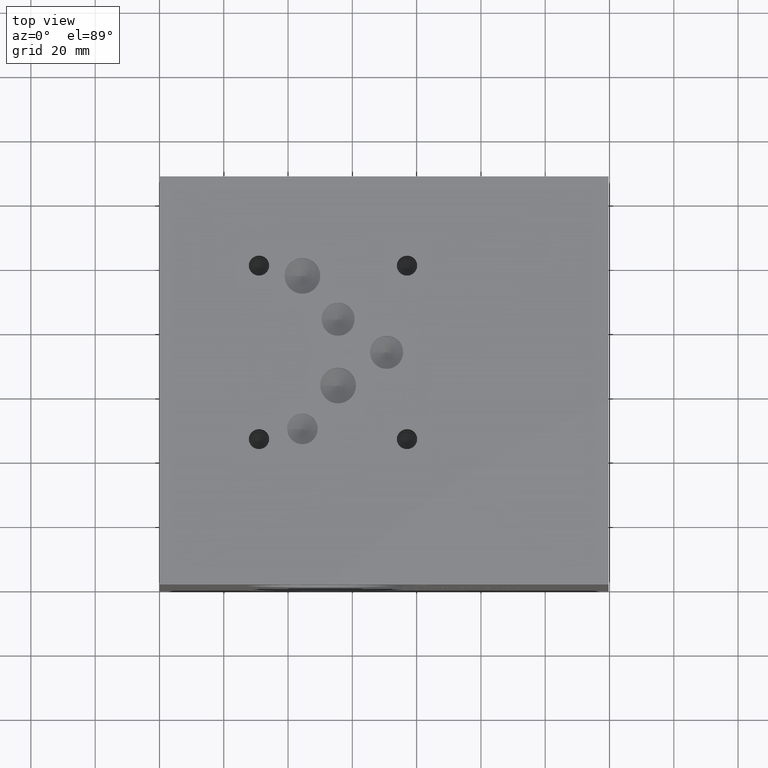
[diagram: clean part render]
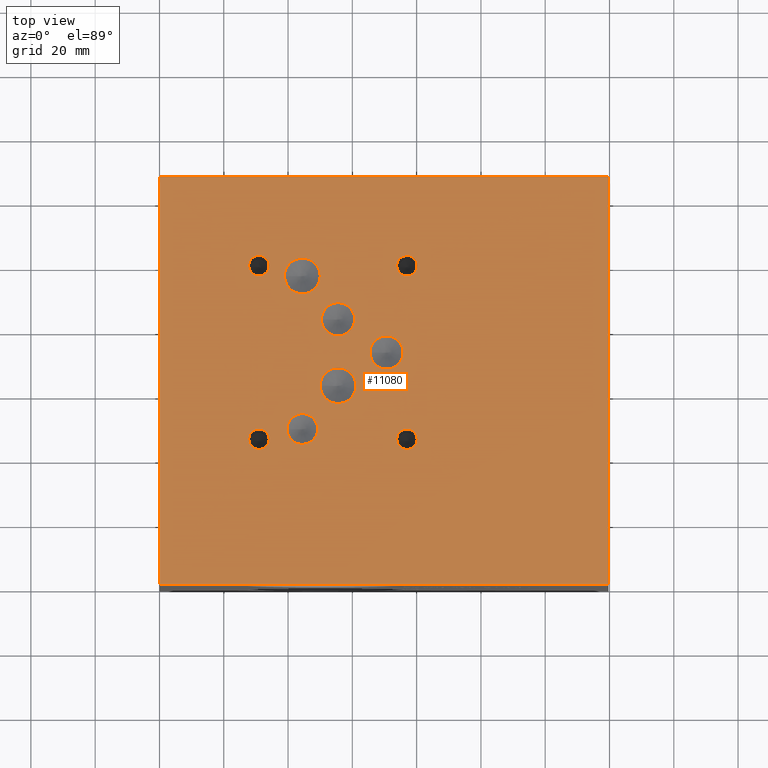
[diagram: same view with one face highlighted and labeled with its STEP entity id]
A machine part, top view. The second image highlights one B-rep face of the part: STEP entity #11080.
In plain terms, the highlighted planar face has unit normal (0, 0, 1).
Its self-contained STEP definition (entity closure, byte-faithful):
#162=CIRCLE('',#11448,4.7625);
#163=CIRCLE('',#11449,4.7625);
#166=CIRCLE('',#11454,5.5626);
#167=CIRCLE('',#11455,5.5626);
#170=CIRCLE('',#11460,5.5626);
#171=CIRCLE('',#11461,5.5626);
#174=CIRCLE('',#11466,5.1562);
#175=CIRCLE('',#11467,5.1562);
#178=CIRCLE('',#11472,5.1562);
#179=CIRCLE('',#11473,5.1562);
#185=CIRCLE('',#11482,3.175);
#186=CIRCLE('',#11483,3.175);
#192=CIRCLE('',#11493,3.175);
#193=CIRCLE('',#11494,3.175);
#199=CIRCLE('',#11504,3.175);
#200=CIRCLE('',#11505,3.175);
#206=CIRCLE('',#11515,3.175);
#207=CIRCLE('',#11516,3.175);
#400=FACE_BOUND('',#2060,.T.);
#401=FACE_BOUND('',#2061,.T.);
#402=FACE_BOUND('',#2062,.T.);
#403=FACE_BOUND('',#2063,.T.);
#404=FACE_BOUND('',#2064,.T.);
#405=FACE_BOUND('',#2065,.T.);
#406=FACE_BOUND('',#2066,.T.);
#407=FACE_BOUND('',#2067,.T.);
#408=FACE_BOUND('',#2068,.T.);
#1420=FACE_OUTER_BOUND('',#2059,.T.);
#2059=EDGE_LOOP('',(#9740,#9741,#9742,#9743));
#2060=EDGE_LOOP('',(#9744,#9745));
#2061=EDGE_LOOP('',(#9746,#9747));
#2062=EDGE_LOOP('',(#9748,#9749));
#2063=EDGE_LOOP('',(#9750,#9751));
#2064=EDGE_LOOP('',(#9752,#9753));
#2065=EDGE_LOOP('',(#9754,#9755));
#2066=EDGE_LOOP('',(#9756,#9757));
#2067=EDGE_LOOP('',(#9758,#9759));
#2068=EDGE_LOOP('',(#9760,#9761));
#2410=LINE('',#16593,#3434);
#2900=LINE('',#18114,#3924);
#2943=LINE('',#18351,#3967);
#3093=LINE('',#19096,#4117);
#3434=VECTOR('',#12251,10.);
#3924=VECTOR('',#13099,10.);
#3967=VECTOR('',#13176,10.);
#4117=VECTOR('',#14018,10.);
#4492=VERTEX_POINT('',#16590);
#4493=VERTEX_POINT('',#16592);
#4865=VERTEX_POINT('',#18113);
#4914=VERTEX_POINT('',#18349);
#4976=VERTEX_POINT('',#18534);
#4977=VERTEX_POINT('',#18535);
#4981=VERTEX_POINT('',#18547);
#4982=VERTEX_POINT('',#18548);
#4986=VERTEX_POINT('',#18560);
#4987=VERTEX_POINT('',#18561);
#4991=VERTEX_POINT('',#18573);
#4992=VERTEX_POINT('',#18574);
#4996=VERTEX_POINT('',#18586);
#4997=VERTEX_POINT('',#18587);
#5004=VERTEX_POINT('',#18606);
#5005=VERTEX_POINT('',#18607);
#5012=VERTEX_POINT('',#18628);
#5013=VERTEX_POINT('',#18629);
#5020=VERTEX_POINT('',#18650);
#5021=VERTEX_POINT('',#18651);
#5028=VERTEX_POINT('',#18672);
#5029=VERTEX_POINT('',#18673);
#5724=EDGE_CURVE('',#4493,#4492,#2410,.T.);
#6279=EDGE_CURVE('',#4865,#4493,#2900,.T.);
#6345=EDGE_CURVE('',#4492,#4914,#2943,.T.);
#6434=EDGE_CURVE('',#4976,#4977,#162,.T.);
#6435=EDGE_CURVE('',#4977,#4976,#163,.T.);
#6440=EDGE_CURVE('',#4981,#4982,#166,.T.);
#6441=EDGE_CURVE('',#4982,#4981,#167,.T.);
#6446=EDGE_CURVE('',#4986,#4987,#170,.T.);
#6447=EDGE_CURVE('',#4987,#4986,#171,.T.);
#6452=EDGE_CURVE('',#4991,#4992,#174,.T.);
#6453=EDGE_CURVE('',#4992,#4991,#175,.T.);
#6458=EDGE_CURVE('',#4996,#4997,#178,.T.);
#6459=EDGE_CURVE('',#4997,#4996,#179,.T.);
#6467=EDGE_CURVE('',#5004,#5005,#185,.T.);
#6468=EDGE_CURVE('',#5005,#5004,#186,.T.);
#6477=EDGE_CURVE('',#5012,#5013,#192,.T.);
#6478=EDGE_CURVE('',#5013,#5012,#193,.T.);
#6487=EDGE_CURVE('',#5020,#5021,#199,.T.);
#6488=EDGE_CURVE('',#5021,#5020,#200,.T.);
#6497=EDGE_CURVE('',#5028,#5029,#206,.T.);
#6498=EDGE_CURVE('',#5029,#5028,#207,.T.);
#6697=EDGE_CURVE('',#4914,#4865,#3093,.T.);
#9740=ORIENTED_EDGE('',*,*,#5724,.T.);
#9741=ORIENTED_EDGE('',*,*,#6345,.T.);
#9742=ORIENTED_EDGE('',*,*,#6697,.T.);
#9743=ORIENTED_EDGE('',*,*,#6279,.T.);
#9744=ORIENTED_EDGE('',*,*,#6434,.T.);
#9745=ORIENTED_EDGE('',*,*,#6435,.T.);
#9746=ORIENTED_EDGE('',*,*,#6440,.T.);
#9747=ORIENTED_EDGE('',*,*,#6441,.T.);
#9748=ORIENTED_EDGE('',*,*,#6446,.T.);
#9749=ORIENTED_EDGE('',*,*,#6447,.T.);
#9750=ORIENTED_EDGE('',*,*,#6452,.T.);
#9751=ORIENTED_EDGE('',*,*,#6453,.T.);
#9752=ORIENTED_EDGE('',*,*,#6458,.T.);
#9753=ORIENTED_EDGE('',*,*,#6459,.T.);
#9754=ORIENTED_EDGE('',*,*,#6467,.T.);
#9755=ORIENTED_EDGE('',*,*,#6468,.T.);
#9756=ORIENTED_EDGE('',*,*,#6477,.T.);
#9757=ORIENTED_EDGE('',*,*,#6478,.T.);
#9758=ORIENTED_EDGE('',*,*,#6487,.T.);
#9759=ORIENTED_EDGE('',*,*,#6488,.T.);
#9760=ORIENTED_EDGE('',*,*,#6497,.T.);
#9761=ORIENTED_EDGE('',*,*,#6498,.T.);
#10083=PLANE('',#11729);
#11080=ADVANCED_FACE('',(#1420,#400,#401,#402,#403,#404,#405,#406,#407,
#408),#10083,.T.);
#11448=AXIS2_PLACEMENT_3D('',#18536,#13365,#13366);
#11449=AXIS2_PLACEMENT_3D('',#18537,#13367,#13368);
#11454=AXIS2_PLACEMENT_3D('',#18549,#13379,#13380);
#11455=AXIS2_PLACEMENT_3D('',#18550,#13381,#13382);
#11460=AXIS2_PLACEMENT_3D('',#18562,#13393,#13394);
#11461=AXIS2_PLACEMENT_3D('',#18563,#13395,#13396);
#11466=AXIS2_PLACEMENT_3D('',#18575,#13407,#13408);
#11467=AXIS2_PLACEMENT_3D('',#18576,#13409,#13410);
#11472=AXIS2_PLACEMENT_3D('',#18588,#13421,#13422);
#11473=AXIS2_PLACEMENT_3D('',#18589,#13423,#13424);
#11482=AXIS2_PLACEMENT_3D('',#18608,#13443,#13444);
#11483=AXIS2_PLACEMENT_3D('',#18609,#13445,#13446);
#11493=AXIS2_PLACEMENT_3D('',#18630,#13468,#13469);
#11494=AXIS2_PLACEMENT_3D('',#18631,#13470,#13471);
#11504=AXIS2_PLACEMENT_3D('',#18652,#13493,#13494);
#11505=AXIS2_PLACEMENT_3D('',#18653,#13495,#13496);
#11515=AXIS2_PLACEMENT_3D('',#18674,#13518,#13519);
#11516=AXIS2_PLACEMENT_3D('',#18675,#13520,#13521);
#11729=AXIS2_PLACEMENT_3D('',#19099,#14023,#14024);
#12251=DIRECTION('',(1.,0.,0.));
#13099=DIRECTION('',(0.,-1.,0.));
#13176=DIRECTION('',(0.,1.,0.));
#13365=DIRECTION('center_axis',(0.,0.,-1.));
#13366=DIRECTION('ref_axis',(1.,0.,0.));
#13367=DIRECTION('center_axis',(0.,0.,-1.));
#13368=DIRECTION('ref_axis',(1.,0.,0.));
#13379=DIRECTION('center_axis',(0.,0.,-1.));
#13380=DIRECTION('ref_axis',(1.,0.,0.));
#13381=DIRECTION('center_axis',(0.,0.,-1.));
#13382=DIRECTION('ref_axis',(1.,0.,0.));
#13393=DIRECTION('center_axis',(0.,0.,-1.));
#13394=DIRECTION('ref_axis',(1.,0.,0.));
#13395=DIRECTION('center_axis',(0.,0.,-1.));
#13396=DIRECTION('ref_axis',(1.,0.,0.));
#13407=DIRECTION('center_axis',(0.,0.,-1.));
#13408=DIRECTION('ref_axis',(1.,0.,0.));
#13409=DIRECTION('center_axis',(0.,0.,-1.));
#13410=DIRECTION('ref_axis',(1.,0.,0.));
#13421=DIRECTION('center_axis',(0.,0.,-1.));
#13422=DIRECTION('ref_axis',(1.,0.,0.));
#13423=DIRECTION('center_axis',(0.,0.,-1.));
#13424=DIRECTION('ref_axis',(1.,0.,0.));
#13443=DIRECTION('center_axis',(0.,0.,-1.));
#13444=DIRECTION('ref_axis',(1.,0.,0.));
#13445=DIRECTION('center_axis',(0.,0.,-1.));
#13446=DIRECTION('ref_axis',(1.,0.,0.));
#13468=DIRECTION('center_axis',(0.,0.,-1.));
#13469=DIRECTION('ref_axis',(1.,0.,0.));
#13470=DIRECTION('center_axis',(0.,0.,-1.));
#13471=DIRECTION('ref_axis',(1.,0.,0.));
#13493=DIRECTION('center_axis',(0.,0.,-1.));
#13494=DIRECTION('ref_axis',(1.,0.,0.));
#13495=DIRECTION('center_axis',(0.,0.,-1.));
#13496=DIRECTION('ref_axis',(1.,0.,0.));
#13518=DIRECTION('center_axis',(0.,0.,-1.));
#13519=DIRECTION('ref_axis',(1.,0.,0.));
#13520=DIRECTION('center_axis',(0.,0.,-1.));
#13521=DIRECTION('ref_axis',(1.,0.,0.));
#14018=DIRECTION('',(-1.,0.,0.));
#14023=DIRECTION('center_axis',(0.,0.,1.));
#14024=DIRECTION('ref_axis',(1.,0.,0.));
#16590=CARTESIAN_POINT('',(139.7,0.,127.));
#16592=CARTESIAN_POINT('',(0.,0.,127.));
#16593=CARTESIAN_POINT('',(0.,0.,127.));
#18113=CARTESIAN_POINT('',(0.,127.,127.));
#18114=CARTESIAN_POINT('',(0.,127.,127.));
#18349=CARTESIAN_POINT('',(139.7,127.,127.));
#18351=CARTESIAN_POINT('',(139.7,0.,127.));
#18534=CARTESIAN_POINT('',(49.20742,48.387,127.));
#18535=CARTESIAN_POINT('',(39.68242,48.387,127.));
#18536=CARTESIAN_POINT('Origin',(44.44492,48.387,127.));
#18537=CARTESIAN_POINT('Origin',(44.44492,48.387,127.));
#18547=CARTESIAN_POINT('',(50.00752,96.012,127.));
#18548=CARTESIAN_POINT('',(38.88232,96.012,127.));
#18549=CARTESIAN_POINT('Origin',(44.44492,96.012,127.));
#18550=CARTESIAN_POINT('Origin',(44.44492,96.012,127.));
#18560=CARTESIAN_POINT('',(61.11748,61.88202,127.));
#18561=CARTESIAN_POINT('',(49.99228,61.88202,127.));
#18562=CARTESIAN_POINT('Origin',(55.55488,61.88202,127.));
#18563=CARTESIAN_POINT('Origin',(55.55488,61.88202,127.));
#18573=CARTESIAN_POINT('',(75.7936,72.1995,127.));
#18574=CARTESIAN_POINT('',(65.4812,72.1995,127.));
#18575=CARTESIAN_POINT('Origin',(70.6374,72.1995,127.));
#18576=CARTESIAN_POINT('Origin',(70.6374,72.1995,127.));
#18586=CARTESIAN_POINT('',(60.706,82.51698,127.));
#18587=CARTESIAN_POINT('',(50.3936,82.51698,127.));
#18588=CARTESIAN_POINT('Origin',(55.5498,82.51698,127.));
#18589=CARTESIAN_POINT('Origin',(55.5498,82.51698,127.));
#18606=CARTESIAN_POINT('',(80.1624,45.2247,127.));
#18607=CARTESIAN_POINT('',(73.8124,45.2247,127.));
#18608=CARTESIAN_POINT('Origin',(76.9874,45.2247,127.));
#18609=CARTESIAN_POINT('Origin',(76.9874,45.2247,127.));
#18628=CARTESIAN_POINT('',(34.1122,99.2124,127.));
#18629=CARTESIAN_POINT('',(27.7622,99.2124,127.));
#18630=CARTESIAN_POINT('Origin',(30.9372,99.2124,127.));
#18631=CARTESIAN_POINT('Origin',(30.9372,99.2124,127.));
#18650=CARTESIAN_POINT('',(80.1624,99.1997,127.));
#18651=CARTESIAN_POINT('',(73.8124,99.1997,127.));
#18652=CARTESIAN_POINT('Origin',(76.9874,99.1997,127.));
#18653=CARTESIAN_POINT('Origin',(76.9874,99.1997,127.));
#18672=CARTESIAN_POINT('',(34.1249,45.2247,127.));
#18673=CARTESIAN_POINT('',(27.7749,45.2247,127.));
#18674=CARTESIAN_POINT('Origin',(30.9499,45.2247,127.));
#18675=CARTESIAN_POINT('Origin',(30.9499,45.2247,127.));
#19096=CARTESIAN_POINT('',(139.7,127.,127.));
#19099=CARTESIAN_POINT('Origin',(69.85,63.5,127.));